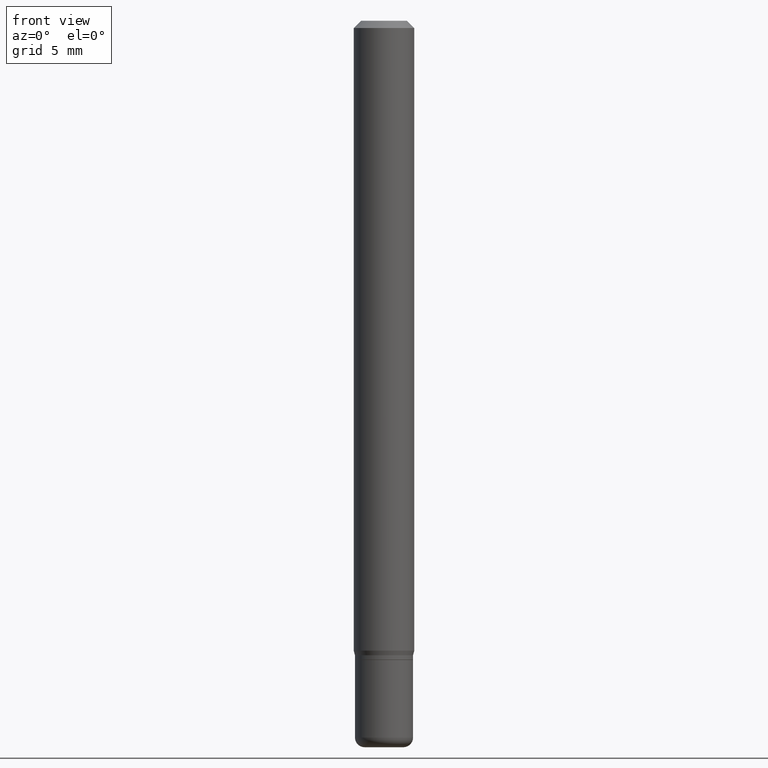
[diagram: clean part render]
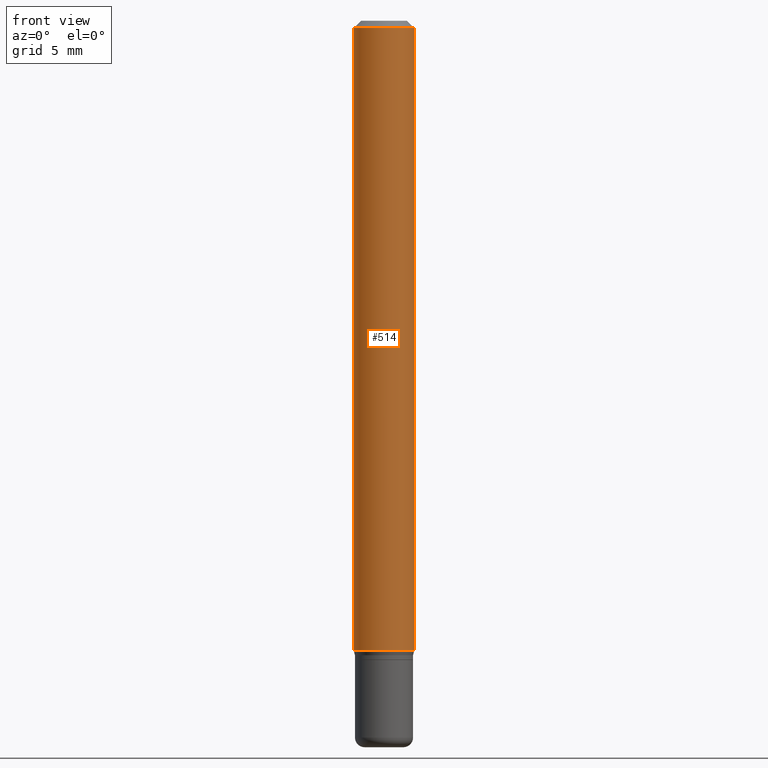
[diagram: same view with one face highlighted and labeled with its STEP entity id]
A machine part, front view. The second image highlights one B-rep face of the part: STEP entity #514.
In plain terms, the highlighted cylindrical surface (edge-blend (fillet) strip) has radius 1.5875 mm, axis along (-0, 0, 1).
Its self-contained STEP definition (entity closure, byte-faithful):
#13 = EDGE_LOOP ( 'NONE', ( #93, #44, #169, #260 ) ) ;
#19 = DIRECTION ( 'NONE',  ( -2.445468806185136877E-29, 3.491481338843145188E-15, 1.000000000000000000 ) ) ;
#27 = DIRECTION ( 'NONE',  ( -2.445468806185136597E-29, 3.491481338843145583E-15, 1.000000000000000000 ) ) ;
#44 = ORIENTED_EDGE ( 'NONE', *, *, #84, .T. ) ;
#56 = VERTEX_POINT ( 'NONE', #460 ) ;
#62 = CARTESIAN_POINT ( 'NONE',  ( 0.000000000000000000, 0.000000000000000000, 0.000000000000000000 ) ) ;
#66 = DIRECTION ( 'NONE',  ( -2.445468806185136597E-29, 3.491481338843145583E-15, 1.000000000000000000 ) ) ;
#84 = EDGE_CURVE ( 'NONE', #56, #131, #476, .T. ) ;
#88 = LINE ( 'NONE', #280, #302 ) ;
#93 = ORIENTED_EDGE ( 'NONE', *, *, #195, .F. ) ;
#97 = AXIS2_PLACEMENT_3D ( 'NONE', #62, #27, #306 ) ;
#98 = DIRECTION ( 'NONE',  ( 1.000000000000000000, -6.982962677686266711E-15, 0.000000000000000000 ) ) ;
#117 = DIRECTION ( 'NONE',  ( -2.445468806185136877E-29, 3.491481338843145188E-15, 1.000000000000000000 ) ) ;
#131 = VERTEX_POINT ( 'NONE', #321 ) ;
#143 = CARTESIAN_POINT ( 'NONE',  ( 3.180747601520010727E-29, -4.541264589508919020E-15, -1.300669872981078168 ) ) ;
#147 = DIRECTION ( 'NONE',  ( 1.000000000000000000, -6.982962677686262766E-15, 0.000000000000000000 ) ) ;
#148 = CYLINDRICAL_SURFACE ( 'NONE', #97, 0.06250000000000000000 ) ;
#165 = VECTOR ( 'NONE', #19, 39.37007874015748143 ) ;
#166 = CARTESIAN_POINT ( 'NONE',  ( 0.06250000000000000000, -4.888073874380378612E-16, -0.01499999999999970281 ) ) ;
#169 = ORIENTED_EDGE ( 'NONE', *, *, #398, .T. ) ;
#173 = AXIS2_PLACEMENT_3D ( 'NONE', #206, #487, #98 ) ;
#195 = EDGE_CURVE ( 'NONE', #56, #509, #88, .T. ) ;
#206 = CARTESIAN_POINT ( 'NONE',  ( 3.668203209277632395E-31, -5.237222008264614861E-17, -0.01499999999999970281 ) ) ;
#217 = LINE ( 'NONE', #373, #165 ) ;
#221 = CARTESIAN_POINT ( 'NONE',  ( -0.06250000000000000000, -1.852729194945719842E-15, -0.01499999999999970281 ) ) ;
#260 = ORIENTED_EDGE ( 'NONE', *, *, #269, .F. ) ;
#269 = EDGE_CURVE ( 'NONE', #509, #301, #402, .T. ) ;
#280 = CARTESIAN_POINT ( 'NONE',  ( -0.06250000000000000000, 4.440892098500626162E-16, -3.074334431409316114E-30 ) ) ;
#301 = VERTEX_POINT ( 'NONE', #166 ) ;
#302 = VECTOR ( 'NONE', #117, 39.37007874015748143 ) ;
#306 = DIRECTION ( 'NONE',  ( 1.000000000000000000, -6.982962677686266711E-15, 4.876176775795935793E-29 ) ) ;
#321 = CARTESIAN_POINT ( 'NONE',  ( 0.06250000000000000000, -4.977699756864310689E-15, -1.300669872981078168 ) ) ;
#365 = AXIS2_PLACEMENT_3D ( 'NONE', #143, #66, #147 ) ;
#373 = CARTESIAN_POINT ( 'NONE',  ( 0.06250000000000000000, -4.364351673553916694E-16, 3.047610484872459871E-30 ) ) ;
#398 = EDGE_CURVE ( 'NONE', #131, #301, #217, .T. ) ;
#402 = CIRCLE ( 'NONE', #173, 0.06250000000000000000 ) ;
#458 = FACE_OUTER_BOUND ( 'NONE', #13, .T. ) ;
#460 = CARTESIAN_POINT ( 'NONE',  ( -0.06250000000000000000, -4.097175379658856404E-15, -1.300669872981078168 ) ) ;
#476 = CIRCLE ( 'NONE', #365, 0.06250000000000000000 ) ;
#487 = DIRECTION ( 'NONE',  ( -2.445468806185136597E-29, 3.491481338843145583E-15, 1.000000000000000000 ) ) ;
#509 = VERTEX_POINT ( 'NONE', #221 ) ;
#514 = ADVANCED_FACE ( 'NONE', ( #458 ), #148, .T. ) ;